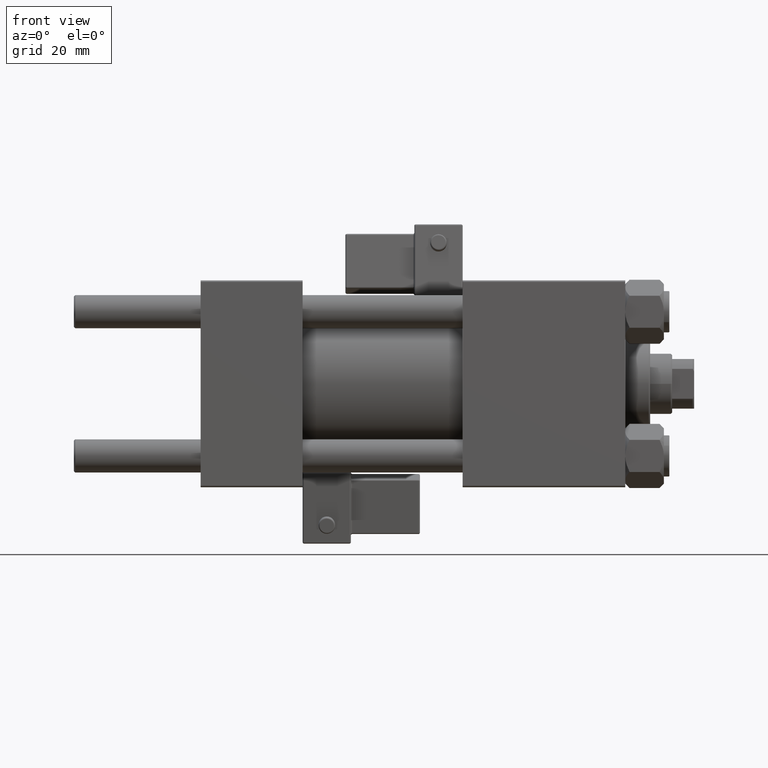
[diagram: clean part render]
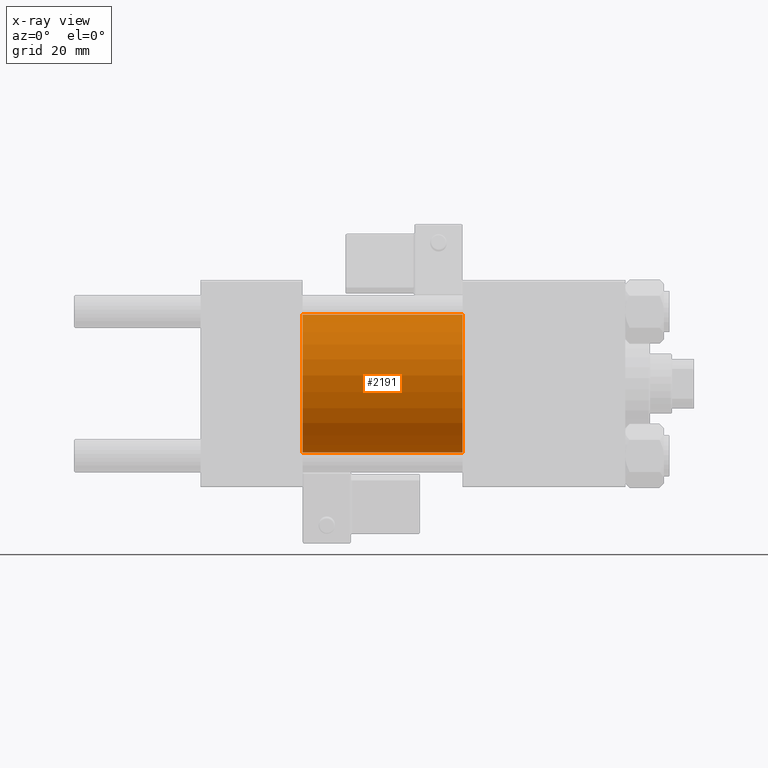
[diagram: x-ray — body ghosted, one internal face saturated and labeled with its STEP entity id]
A machine part, front view, then the same camera in x-ray: the body is ghosted and one INTERNAL B-rep face — a face not visible from any outside direction — is saturated and labeled: STEP entity #2191.
In plain terms, the highlighted cylindrical surface (partial cylindrical patch) has radius 25 mm, axis along (-1, -0, -0).
Its self-contained STEP definition (entity closure, byte-faithful):
#1044 = CARTESIAN_POINT ( 'NONE',  ( 95.00000000000000000, 3.061616997868382254E-15, -25.00000000000000000 ) ) ;
#2191 = ADVANCED_FACE ( 'NONE', ( #11443 ), #38772, .F. ) ;
#4552 = DIRECTION ( 'NONE',  ( -1.000000000000000000, -0.000000000000000000, -0.000000000000000000 ) ) ;
#4718 = VECTOR ( 'NONE', #4552, 1000.000000000000000 ) ;
#4943 = CIRCLE ( 'NONE', #43532, 25.00000000000000000 ) ;
#5261 = DIRECTION ( 'NONE',  ( 0.000000000000000000, 0.000000000000000000, -1.000000000000000000 ) ) ;
#5399 = CARTESIAN_POINT ( 'NONE',  ( 37.00000000000000000, 3.061616997868382254E-15, -25.00000000000000000 ) ) ;
#6731 = EDGE_CURVE ( 'NONE', #7027, #31293, #4943, .T. ) ;
#7027 = VERTEX_POINT ( 'NONE', #35665 ) ;
#7517 = ORIENTED_EDGE ( 'NONE', *, *, #46853, .T. ) ;
#9333 = EDGE_CURVE ( 'NONE', #7027, #47050, #40527, .T. ) ;
#9824 = VECTOR ( 'NONE', #28602, 1000.000000000000000 ) ;
#11443 = FACE_OUTER_BOUND ( 'NONE', #34942, .T. ) ;
#11963 = ORIENTED_EDGE ( 'NONE', *, *, #6731, .T. ) ;
#13929 = CARTESIAN_POINT ( 'NONE',  ( 95.00000000000000000, 0.000000000000000000, 25.00000000000000000 ) ) ;
#14922 = CARTESIAN_POINT ( 'NONE',  ( 37.00000000000000000, 0.000000000000000000, 25.00000000000000000 ) ) ;
#19577 = CARTESIAN_POINT ( 'NONE',  ( 95.00000000000000000, 0.000000000000000000, 0.000000000000000000 ) ) ;
#23013 = DIRECTION ( 'NONE',  ( -1.000000000000000000, -0.000000000000000000, -0.000000000000000000 ) ) ;
#24816 = AXIS2_PLACEMENT_3D ( 'NONE', #19577, #23013, #34567 ) ;
#26799 = DIRECTION ( 'NONE',  ( 0.000000000000000000, 0.000000000000000000, -1.000000000000000000 ) ) ;
#27634 = LINE ( 'NONE', #1044, #9824 ) ;
#28045 = VERTEX_POINT ( 'NONE', #5399 ) ;
#28602 = DIRECTION ( 'NONE',  ( -1.000000000000000000, -0.000000000000000000, -0.000000000000000000 ) ) ;
#28859 = CIRCLE ( 'NONE', #43985, 25.00000000000000000 ) ;
#31293 = VERTEX_POINT ( 'NONE', #31827 ) ;
#31827 = CARTESIAN_POINT ( 'NONE',  ( 95.00000000000000000, 3.061616997868382254E-15, -25.00000000000000000 ) ) ;
#34567 = DIRECTION ( 'NONE',  ( 0.000000000000000000, 0.000000000000000000, 1.000000000000000000 ) ) ;
#34942 = EDGE_LOOP ( 'NONE', ( #11963, #7517, #47522, #39990 ) ) ;
#35193 = DIRECTION ( 'NONE',  ( 1.000000000000000000, 0.000000000000000000, 0.000000000000000000 ) ) ;
#35665 = CARTESIAN_POINT ( 'NONE',  ( 95.00000000000000000, 0.000000000000000000, 25.00000000000000000 ) ) ;
#36345 = EDGE_CURVE ( 'NONE', #47050, #28045, #28859, .T. ) ;
#38772 = CYLINDRICAL_SURFACE ( 'NONE', #24816, 25.00000000000000000 ) ;
#39990 = ORIENTED_EDGE ( 'NONE', *, *, #9333, .F. ) ;
#40527 = LINE ( 'NONE', #13929, #4718 ) ;
#41241 = CARTESIAN_POINT ( 'NONE',  ( 95.00000000000000000, 0.000000000000000000, 0.000000000000000000 ) ) ;
#43095 = CARTESIAN_POINT ( 'NONE',  ( 37.00000000000000000, 0.000000000000000000, 0.000000000000000000 ) ) ;
#43532 = AXIS2_PLACEMENT_3D ( 'NONE', #41241, #48602, #5261 ) ;
#43985 = AXIS2_PLACEMENT_3D ( 'NONE', #43095, #35193, #26799 ) ;
#46853 = EDGE_CURVE ( 'NONE', #31293, #28045, #27634, .T. ) ;
#47050 = VERTEX_POINT ( 'NONE', #14922 ) ;
#47522 = ORIENTED_EDGE ( 'NONE', *, *, #36345, .F. ) ;
#48602 = DIRECTION ( 'NONE',  ( 1.000000000000000000, 0.000000000000000000, 0.000000000000000000 ) ) ;